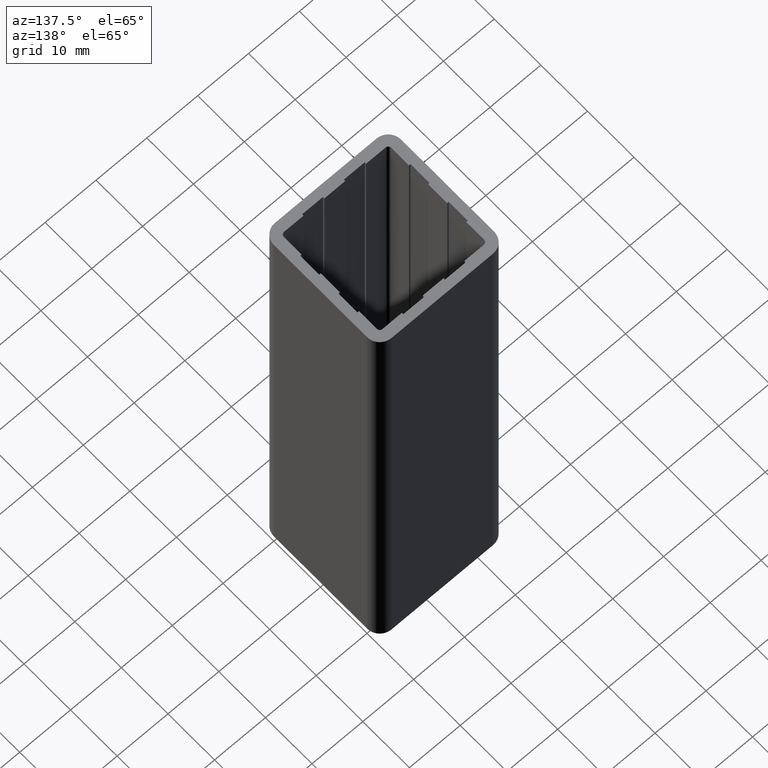
[diagram: clean part render]
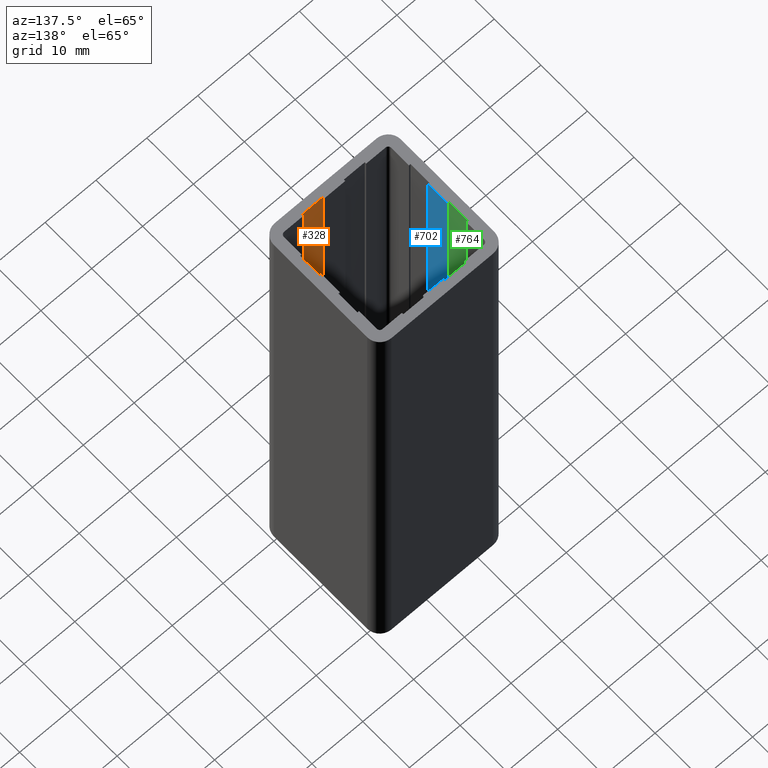
[diagram: same view with three faces highlighted in distinct colors, each labeled with its STEP entity id]
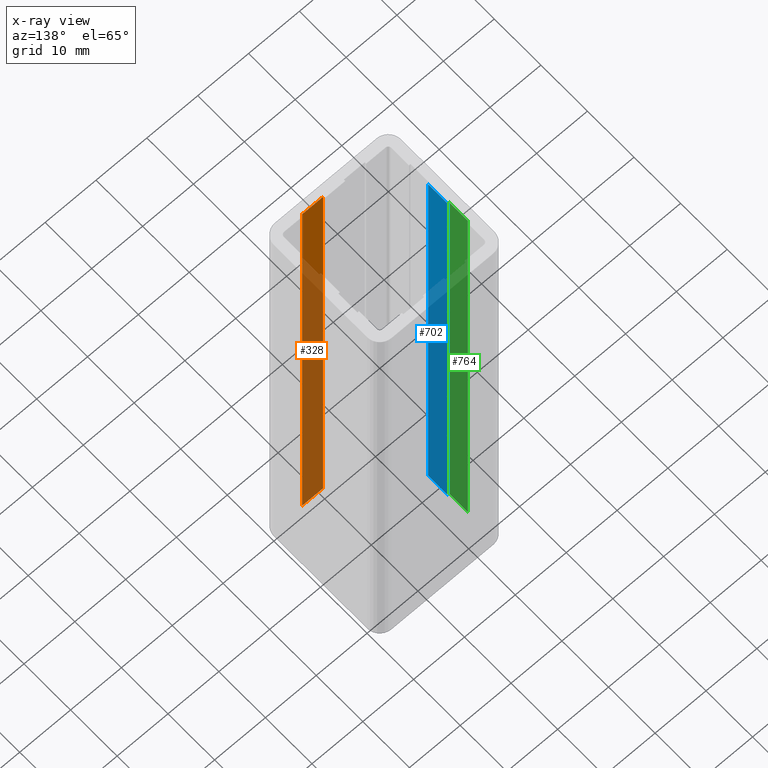
[diagram: x-ray of the same camera — body ghosted, the three highlighted faces saturated]
A machine part, auxiliary view with three faces highlighted in distinct colors.
The next image is the same camera in x-ray (body ghosted, the three faces saturated) — at least one of them is partly hidden behind the body in this view.
Their STEP definitions:

[orange] entity #328 — the highlighted planar face has unit normal (0, 1, 0).
#265=CARTESIAN_POINT('',(-6.349999999999909,-10.849999999999909,0.0));
#266=VERTEX_POINT('',#265);
#273=CARTESIAN_POINT('',(-6.349999999999909,-10.849999999999909,100.0));
#274=VERTEX_POINT('',#273);
#275=CARTESIAN_POINT('',(-6.349999999999909,-10.849999999999909,0.0));
#276=DIRECTION('',(0.0,0.0,1.0));
#277=VECTOR('',#276,100.0);
#278=LINE('',#275,#277);
#279=EDGE_CURVE('',#266,#274,#278,.T.);
#298=CARTESIAN_POINT('',(-6.349999999999909,-10.849999999999909,0.0));
#299=DIRECTION('',(0.0,1.0,0.0));
#300=DIRECTION('',(-1.0,0.0,0.0));
#301=AXIS2_PLACEMENT_3D('',#298,#299,#300);
#302=PLANE('',#301);
#303=CARTESIAN_POINT('',(-10.449999999999818,-10.849999999999909,0.0));
#304=VERTEX_POINT('',#303);
#305=CARTESIAN_POINT('',(-6.349999999999909,-10.849999999999909,0.0));
#306=DIRECTION('',(-1.0,0.0,0.0));
#307=VECTOR('',#306,4.099999999999909);
#308=LINE('',#305,#307);
#309=EDGE_CURVE('',#266,#304,#308,.T.);
#310=ORIENTED_EDGE('',*,*,#309,.T.);
#311=CARTESIAN_POINT('',(-10.449999999999818,-10.849999999999909,100.0));
#312=VERTEX_POINT('',#311);
#313=CARTESIAN_POINT('',(-10.449999999999818,-10.849999999999909,0.0));
#314=DIRECTION('',(0.0,0.0,1.0));
#315=VECTOR('',#314,100.0);
#316=LINE('',#313,#315);
#317=EDGE_CURVE('',#304,#312,#316,.T.);
#318=ORIENTED_EDGE('',*,*,#317,.T.);
#319=CARTESIAN_POINT('',(-6.349999999999909,-10.849999999999909,100.0));
#320=DIRECTION('',(-1.0,0.0,0.0));
#321=VECTOR('',#320,4.099999999999909);
#322=LINE('',#319,#321);
#323=EDGE_CURVE('',#274,#312,#322,.T.);
#324=ORIENTED_EDGE('',*,*,#323,.F.);
#325=ORIENTED_EDGE('',*,*,#279,.F.);
#326=EDGE_LOOP('',(#310,#318,#324,#325));
#327=FACE_OUTER_BOUND('',#326,.T.);
#328=ADVANCED_FACE('',(#327),#302,.T.);

[blue] entity #702 — the highlighted planar face has unit normal (1, 0, 0).
#646=CARTESIAN_POINT('',(-23.049999999999955,-2.050000000000068,0.0));
#647=VERTEX_POINT('',#646);
#654=CARTESIAN_POINT('',(-23.049999999999955,-2.050000000000068,100.0));
#655=VERTEX_POINT('',#654);
#656=CARTESIAN_POINT('',(-23.049999999999955,-2.050000000000068,0.0));
#657=DIRECTION('',(0.0,0.0,1.0));
#658=VECTOR('',#657,100.0);
#659=LINE('',#656,#658);
#660=EDGE_CURVE('',#647,#655,#659,.T.);
#672=CARTESIAN_POINT('',(-23.049999999999955,-2.050000000000068,0.0));
#673=DIRECTION('',(1.0,0.0,0.0));
#674=DIRECTION('',(0.0,1.0,0.0));
#675=AXIS2_PLACEMENT_3D('',#672,#673,#674);
#676=PLANE('',#675);
#677=CARTESIAN_POINT('',(-23.049999999999955,2.049999999999898,0.0));
#678=VERTEX_POINT('',#677);
#679=CARTESIAN_POINT('',(-23.049999999999955,-2.050000000000068,0.0));
#680=DIRECTION('',(0.0,1.0,0.0));
#681=VECTOR('',#680,4.099999999999966);
#682=LINE('',#679,#681);
#683=EDGE_CURVE('',#647,#678,#682,.T.);
#684=ORIENTED_EDGE('',*,*,#683,.T.);
#685=CARTESIAN_POINT('',(-23.049999999999955,2.049999999999898,100.0));
#686=VERTEX_POINT('',#685);
#687=CARTESIAN_POINT('',(-23.049999999999955,2.049999999999898,0.0));
#688=DIRECTION('',(0.0,0.0,1.0));
#689=VECTOR('',#688,100.0);
#690=LINE('',#687,#689);
#691=EDGE_CURVE('',#678,#686,#690,.T.);
#692=ORIENTED_EDGE('',*,*,#691,.T.);
#693=CARTESIAN_POINT('',(-23.049999999999955,-2.050000000000068,100.0));
#694=DIRECTION('',(0.0,1.0,0.0));
#695=VECTOR('',#694,4.099999999999966);
#696=LINE('',#693,#695);
#697=EDGE_CURVE('',#655,#686,#696,.T.);
#698=ORIENTED_EDGE('',*,*,#697,.F.);
#699=ORIENTED_EDGE('',*,*,#660,.F.);
#700=EDGE_LOOP('',(#684,#692,#698,#699));
#701=FACE_OUTER_BOUND('',#700,.T.);
#702=ADVANCED_FACE('',(#701),#676,.T.);

[green] entity #764 — the highlighted planar face has unit normal (1, 0, 0).
#708=CARTESIAN_POINT('',(-23.349999999999909,2.049999999999898,0.0));
#709=VERTEX_POINT('',#708);
#716=CARTESIAN_POINT('',(-23.349999999999909,2.049999999999898,100.0));
#717=VERTEX_POINT('',#716);
#718=CARTESIAN_POINT('',(-23.349999999999909,2.049999999999898,0.0));
#719=DIRECTION('',(0.0,0.0,1.0));
#720=VECTOR('',#719,100.0);
#721=LINE('',#718,#720);
#722=EDGE_CURVE('',#709,#717,#721,.T.);
#734=CARTESIAN_POINT('',(-23.349999999999909,2.049999999999898,0.0));
#735=DIRECTION('',(1.0,0.0,0.0));
#736=DIRECTION('',(0.0,1.0,0.0));
#737=AXIS2_PLACEMENT_3D('',#734,#735,#736);
#738=PLANE('',#737);
#739=CARTESIAN_POINT('',(-23.349999999999909,6.150000000000034,0.0));
#740=VERTEX_POINT('',#739);
#741=CARTESIAN_POINT('',(-23.349999999999909,2.049999999999898,0.0));
#742=DIRECTION('',(0.0,1.0,0.0));
#743=VECTOR('',#742,4.099999999999909);
#744=LINE('',#741,#743);
#745=EDGE_CURVE('',#709,#740,#744,.T.);
#746=ORIENTED_EDGE('',*,*,#745,.T.);
#747=CARTESIAN_POINT('',(-23.349999999999909,6.150000000000034,100.0));
#748=VERTEX_POINT('',#747);
#749=CARTESIAN_POINT('',(-23.349999999999909,6.150000000000034,0.0));
#750=DIRECTION('',(0.0,0.0,1.0));
#751=VECTOR('',#750,100.0);
#752=LINE('',#749,#751);
#753=EDGE_CURVE('',#740,#748,#752,.T.);
#754=ORIENTED_EDGE('',*,*,#753,.T.);
#755=CARTESIAN_POINT('',(-23.349999999999909,2.049999999999898,100.0));
#756=DIRECTION('',(0.0,1.0,0.0));
#757=VECTOR('',#756,4.099999999999909);
#758=LINE('',#755,#757);
#759=EDGE_CURVE('',#717,#748,#758,.T.);
#760=ORIENTED_EDGE('',*,*,#759,.F.);
#761=ORIENTED_EDGE('',*,*,#722,.F.);
#762=EDGE_LOOP('',(#746,#754,#760,#761));
#763=FACE_OUTER_BOUND('',#762,.T.);
#764=ADVANCED_FACE('',(#763),#738,.T.);